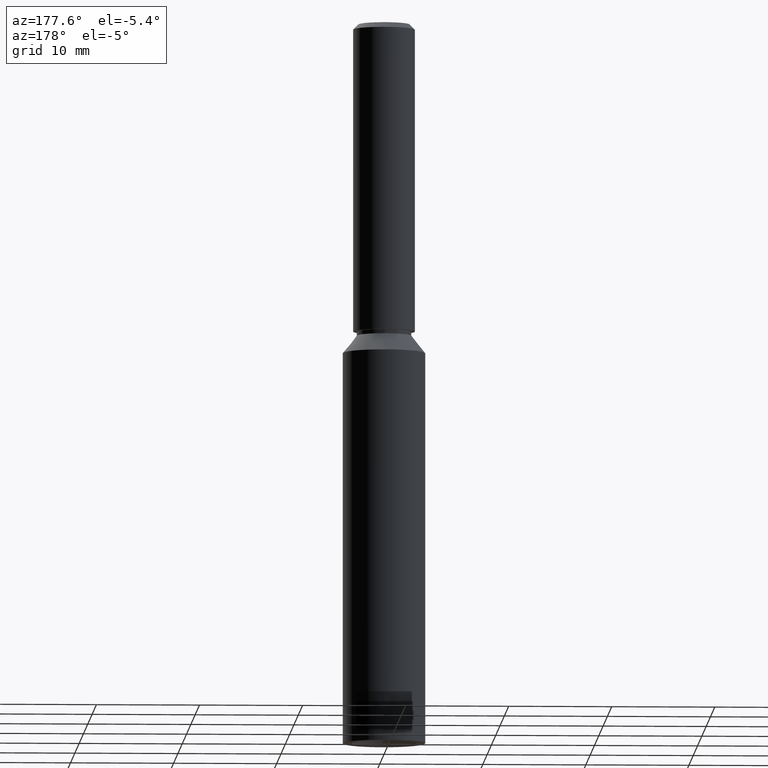
[diagram: clean part render]
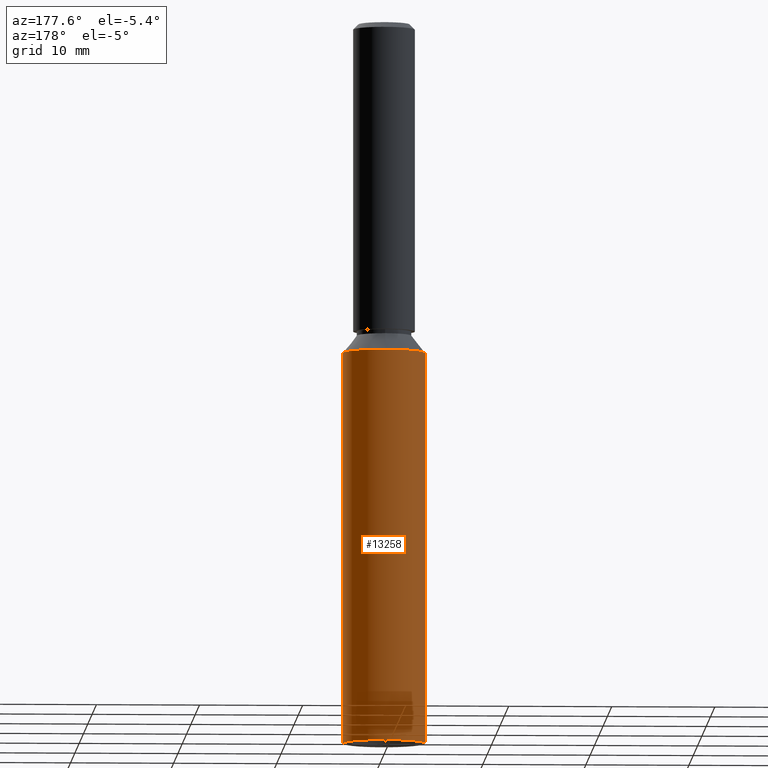
[diagram: same view with one face highlighted and labeled with its STEP entity id]
A machine part, auxiliary view. The second image highlights one B-rep face of the part: STEP entity #13258.
In plain terms, the highlighted cylindrical surface (partial cylindrical patch) has radius 4 mm, axis along (-0, -0, -1).
Its self-contained STEP definition (entity closure, byte-faithful):
#388 = LINE ( 'NONE', #3251, #9811 ) ;
#1022 = VERTEX_POINT ( 'NONE', #1407 ) ;
#1029 = CARTESIAN_POINT ( 'NONE',  ( 0.0000000000000000000, 0.0000000000000000000, 40.00000000000000000 ) ) ;
#1407 = CARTESIAN_POINT ( 'NONE',  ( 4.000000000000000000, 4.898587196589412800E-016, 0.0000000000000000000 ) ) ;
#1634 = AXIS2_PLACEMENT_3D ( 'NONE', #4642, #8744, #2444 ) ;
#1804 = EDGE_CURVE ( 'NONE', #5255, #4703, #13713, .T. ) ;
#1930 = ORIENTED_EDGE ( 'NONE', *, *, #1804, .F. ) ;
#1995 = VECTOR ( 'NONE', #10152, 1000.000000000000000 ) ;
#2070 = CARTESIAN_POINT ( 'NONE',  ( 0.0000000000000000000, -7.477419753763976000E-017, 38.00000000000000000 ) ) ;
#2148 = DIRECTION ( 'NONE',  ( -0.0000000000000000000, -0.0000000000000000000, -1.000000000000000000 ) ) ;
#2444 = DIRECTION ( 'NONE',  ( 1.000000000000000000, 0.0000000000000000000, 0.0000000000000000000 ) ) ;
#3021 = CYLINDRICAL_SURFACE ( 'NONE', #11520, 4.000000000000000000 ) ;
#3026 = CARTESIAN_POINT ( 'NONE',  ( -4.000000000000005300, 9.629649721936179300E-032, 38.00000000000000000 ) ) ;
#3247 = AXIS2_PLACEMENT_3D ( 'NONE', #2070, #4284, #10649 ) ;
#3251 = CARTESIAN_POINT ( 'NONE',  ( 4.000000000000000000, 4.898587196589412800E-016, 40.00000000000000000 ) ) ;
#3277 = CIRCLE ( 'NONE', #3247, 4.000000000000005300 ) ;
#3312 = EDGE_CURVE ( 'NONE', #1022, #4703, #4955, .T. ) ;
#3390 = DIRECTION ( 'NONE',  ( -0.0000000000000000000, -0.0000000000000000000, -1.000000000000000000 ) ) ;
#3949 = CARTESIAN_POINT ( 'NONE',  ( -4.000000000000000000, 0.0000000000000000000, 40.00000000000000000 ) ) ;
#4267 = ORIENTED_EDGE ( 'NONE', *, *, #13168, .T. ) ;
#4284 = DIRECTION ( 'NONE',  ( -0.0000000000000000000, 1.967742040464204400E-018, -1.000000000000000000 ) ) ;
#4642 = CARTESIAN_POINT ( 'NONE',  ( 0.0000000000000000000, 0.0000000000000000000, 0.0000000000000000000 ) ) ;
#4703 = VERTEX_POINT ( 'NONE', #12232 ) ;
#4847 = ORIENTED_EDGE ( 'NONE', *, *, #5882, .T. ) ;
#4955 = CIRCLE ( 'NONE', #1634, 4.000000000000000000 ) ;
#5102 = DIRECTION ( 'NONE',  ( 0.0000000000000000000, 1.000000000000000000, 0.0000000000000000000 ) ) ;
#5255 = VERTEX_POINT ( 'NONE', #3026 ) ;
#5649 = CIRCLE ( 'NONE', #11068, 4.000000000000005300 ) ;
#5711 = ORIENTED_EDGE ( 'NONE', *, *, #10494, .T. ) ;
#5852 = CARTESIAN_POINT ( 'NONE',  ( 4.000000000000005300, 4.898587196589420700E-016, 38.00000000000000000 ) ) ;
#5882 = EDGE_CURVE ( 'NONE', #5255, #12210, #3277, .T. ) ;
#5959 = DIRECTION ( 'NONE',  ( -0.0000000000000000000, 1.967742040464204400E-018, -1.000000000000000000 ) ) ;
#8138 = CARTESIAN_POINT ( 'NONE',  ( 0.0000000000000000000, -7.477419753763976000E-017, 38.00000000000000000 ) ) ;
#8364 = DIRECTION ( 'NONE',  ( -1.000000000000000000, 0.0000000000000000000, 0.0000000000000000000 ) ) ;
#8621 = FACE_OUTER_BOUND ( 'NONE', #8736, .T. ) ;
#8736 = EDGE_LOOP ( 'NONE', ( #4847, #4267, #5711, #9505, #1930 ) ) ;
#8744 = DIRECTION ( 'NONE',  ( 0.0000000000000000000, 0.0000000000000000000, 1.000000000000000000 ) ) ;
#9505 = ORIENTED_EDGE ( 'NONE', *, *, #3312, .T. ) ;
#9811 = VECTOR ( 'NONE', #3390, 1000.000000000000000 ) ;
#10152 = DIRECTION ( 'NONE',  ( -0.0000000000000000000, -0.0000000000000000000, -1.000000000000000000 ) ) ;
#10247 = VERTEX_POINT ( 'NONE', #5852 ) ;
#10494 = EDGE_CURVE ( 'NONE', #10247, #1022, #388, .T. ) ;
#10649 = DIRECTION ( 'NONE',  ( 0.0000000000000000000, 1.000000000000000000, 0.0000000000000000000 ) ) ;
#11068 = AXIS2_PLACEMENT_3D ( 'NONE', #8138, #5959, #5102 ) ;
#11454 = CARTESIAN_POINT ( 'NONE',  ( 0.0000000000000000000, 4.000000000000005300, 38.00000000000000000 ) ) ;
#11520 = AXIS2_PLACEMENT_3D ( 'NONE', #1029, #2148, #8364 ) ;
#12210 = VERTEX_POINT ( 'NONE', #11454 ) ;
#12232 = CARTESIAN_POINT ( 'NONE',  ( -4.000000000000000000, 0.0000000000000000000, 0.0000000000000000000 ) ) ;
#13168 = EDGE_CURVE ( 'NONE', #12210, #10247, #5649, .T. ) ;
#13258 = ADVANCED_FACE ( 'NONE', ( #8621 ), #3021, .T. ) ;
#13713 = LINE ( 'NONE', #3949, #1995 ) ;